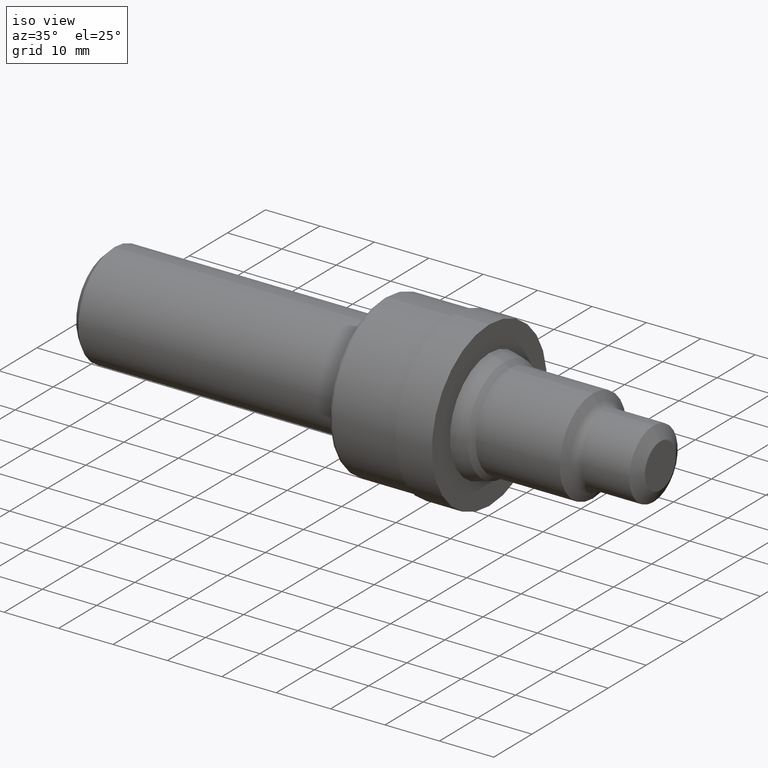
[diagram: clean part render]
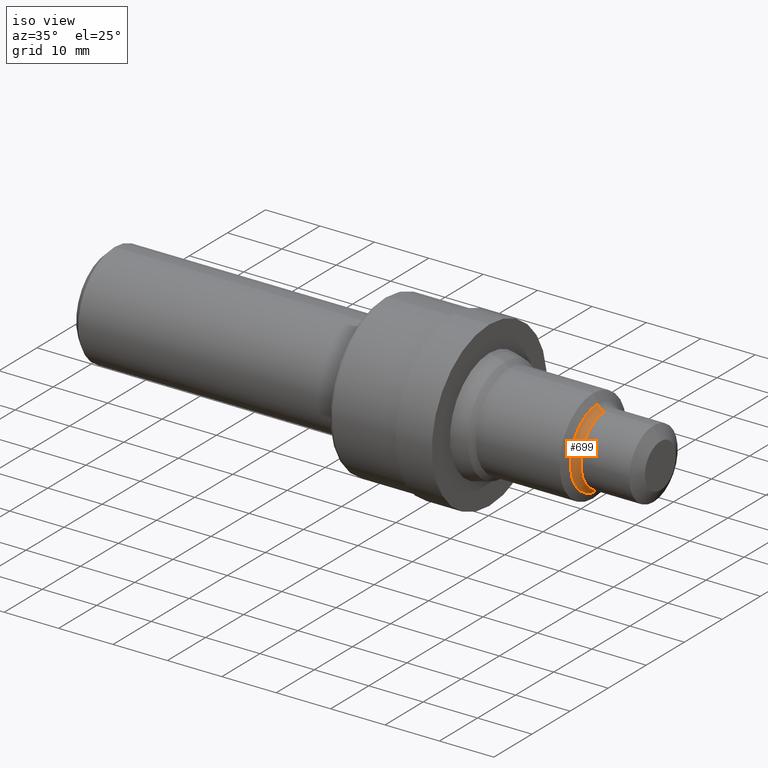
[diagram: same view with one face highlighted and labeled with its STEP entity id]
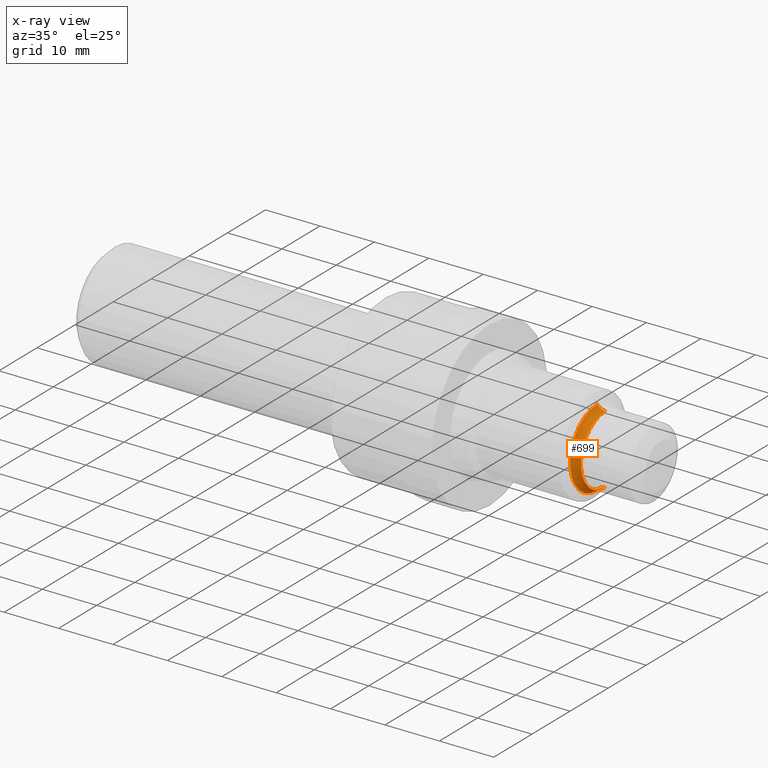
[diagram: x-ray of the same camera — body ghosted, the highlighted face saturated]
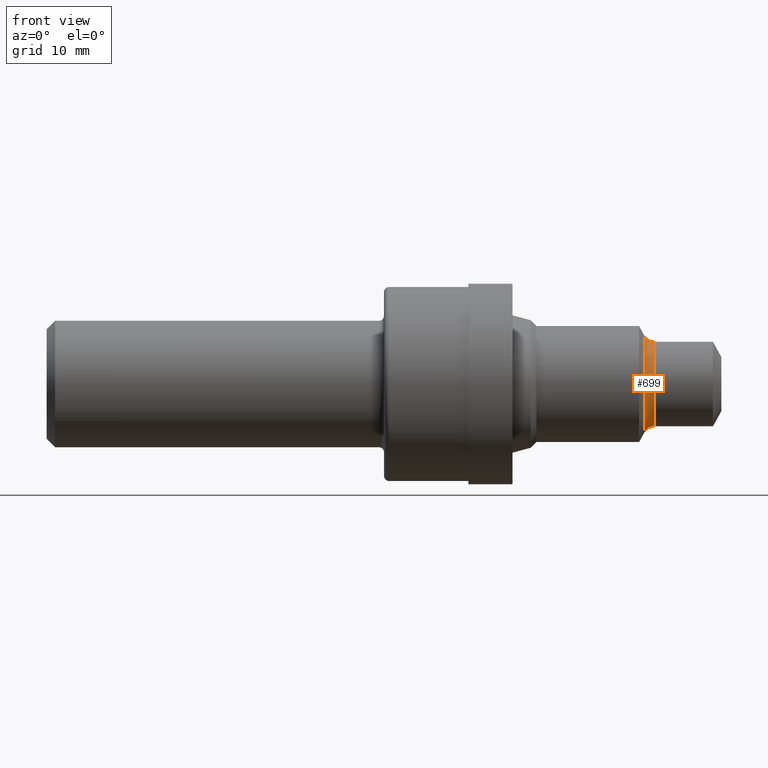
[diagram: same view with one face highlighted and labeled with its STEP entity id]
A machine part, iso view. The second image highlights one B-rep face of the part: STEP entity #699.
The next image is the same camera in x-ray: the body ghosted, the highlighted face saturated — about 0% of this face is hidden behind the body in this view.
A second angle (front view) of the same face is appended — the face is thin or edge-on in the first view.
In plain terms, the highlighted toroidal blend (fillet) surface has major radius 7.935 mm and minor (blend) radius 1.5748 mm.
Its self-contained STEP definition (entity closure, byte-faithful):
#16 = AXIS2_PLACEMENT_3D ( 'NONE', #393, #761, #325 ) ;
#60 = DIRECTION ( 'NONE',  ( 0.0000000000000000000, 0.0000000000000000000, 1.000000000000000000 ) ) ;
#112 = CARTESIAN_POINT ( 'NONE',  ( 3.600404118234053374, 3.262102722415191411E-17, -0.2503999999999999559 ) ) ;
#121 = CARTESIAN_POINT ( 'NONE',  ( 3.546177696391410894, 0.0000000000000000000, 0.0000000000000000000 ) ) ;
#146 = EDGE_CURVE ( 'NONE', #483, #637, #391, .T. ) ;
#173 = ORIENTED_EDGE ( 'NONE', *, *, #236, .T. ) ;
#182 = EDGE_CURVE ( 'NONE', #637, #253, #247, .T. ) ;
#217 = CIRCLE ( 'NONE', #828, 0.2503999999999999559 ) ;
#236 = EDGE_CURVE ( 'NONE', #483, #488, #473, .T. ) ;
#247 = CIRCLE ( 'NONE', #16, 0.06200000000000001343 ) ;
#253 = VERTEX_POINT ( 'NONE', #352 ) ;
#314 = EDGE_LOOP ( 'NONE', ( #689, #173, #460, #780 ) ) ;
#325 = DIRECTION ( 'NONE',  ( 0.0000000000000000000, 0.0000000000000000000, -1.000000000000000000 ) ) ;
#339 = CARTESIAN_POINT ( 'NONE',  ( 3.546177696391410894, 3.835237424416152183E-17, -0.2823418035447272101 ) ) ;
#346 = AXIS2_PLACEMENT_3D ( 'NONE', #121, #522, #60 ) ;
#352 = CARTESIAN_POINT ( 'NONE',  ( 3.600404118234053374, 0.0000000000000000000, 0.2503999999999999559 ) ) ;
#374 = EDGE_CURVE ( 'NONE', #488, #253, #217, .T. ) ;
#386 = DIRECTION ( 'NONE',  ( -1.000000000000000000, -0.0000000000000000000, -0.0000000000000000000 ) ) ;
#391 = CIRCLE ( 'NONE', #346, 0.2823418035447272101 ) ;
#393 = CARTESIAN_POINT ( 'NONE',  ( 3.600404118234053374, 0.0000000000000000000, 0.3124000000000000110 ) ) ;
#420 = DIRECTION ( 'NONE',  ( 0.0000000000000000000, 0.0000000000000000000, 1.000000000000000000 ) ) ;
#460 = ORIENTED_EDGE ( 'NONE', *, *, #374, .T. ) ;
#473 = CIRCLE ( 'NONE', #690, 0.06200000000000001343 ) ;
#483 = VERTEX_POINT ( 'NONE', #339 ) ;
#484 = DIRECTION ( 'NONE',  ( 0.0000000000000000000, -1.224646799147352961E-16, 1.000000000000000000 ) ) ;
#488 = VERTEX_POINT ( 'NONE', #112 ) ;
#503 = CARTESIAN_POINT ( 'NONE',  ( 3.600404118234053374, 0.0000000000000000000, 0.0000000000000000000 ) ) ;
#522 = DIRECTION ( 'NONE',  ( -1.000000000000000000, -0.0000000000000000000, -0.0000000000000000000 ) ) ;
#556 = CARTESIAN_POINT ( 'NONE',  ( 3.600404118234053374, 3.825796600536331329E-17, -0.3124000000000000110 ) ) ;
#560 = CARTESIAN_POINT ( 'NONE',  ( 3.600404118234053374, 0.0000000000000000000, 0.0000000000000000000 ) ) ;
#576 = AXIS2_PLACEMENT_3D ( 'NONE', #560, #777, #420 ) ;
#604 = TOROIDAL_SURFACE ( 'NONE', #576, 0.3124000000000000110, 0.06200000000000001343 ) ;
#637 = VERTEX_POINT ( 'NONE', #741 ) ;
#689 = ORIENTED_EDGE ( 'NONE', *, *, #146, .F. ) ;
#690 = AXIS2_PLACEMENT_3D ( 'NONE', #556, #730, #484 ) ;
#699 = ADVANCED_FACE ( 'NONE', ( #763 ), #604, .F. ) ;
#708 = DIRECTION ( 'NONE',  ( 0.0000000000000000000, 0.0000000000000000000, 1.000000000000000000 ) ) ;
#730 = DIRECTION ( 'NONE',  ( -0.0000000000000000000, 1.000000000000000000, 1.224646799147353207E-16 ) ) ;
#741 = CARTESIAN_POINT ( 'NONE',  ( 3.546177696391410894, 0.0000000000000000000, 0.2823418035447272101 ) ) ;
#761 = DIRECTION ( 'NONE',  ( 0.0000000000000000000, -1.000000000000000000, 0.0000000000000000000 ) ) ;
#763 = FACE_OUTER_BOUND ( 'NONE', #314, .T. ) ;
#777 = DIRECTION ( 'NONE',  ( -1.000000000000000000, -0.0000000000000000000, -0.0000000000000000000 ) ) ;
#780 = ORIENTED_EDGE ( 'NONE', *, *, #182, .F. ) ;
#828 = AXIS2_PLACEMENT_3D ( 'NONE', #503, #386, #708 ) ;